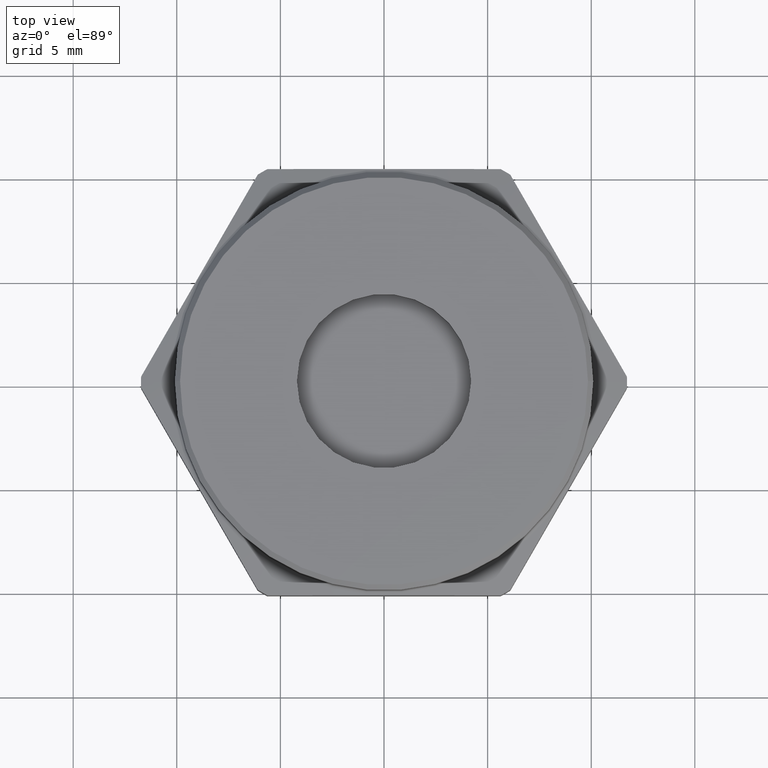
[diagram: clean part render]
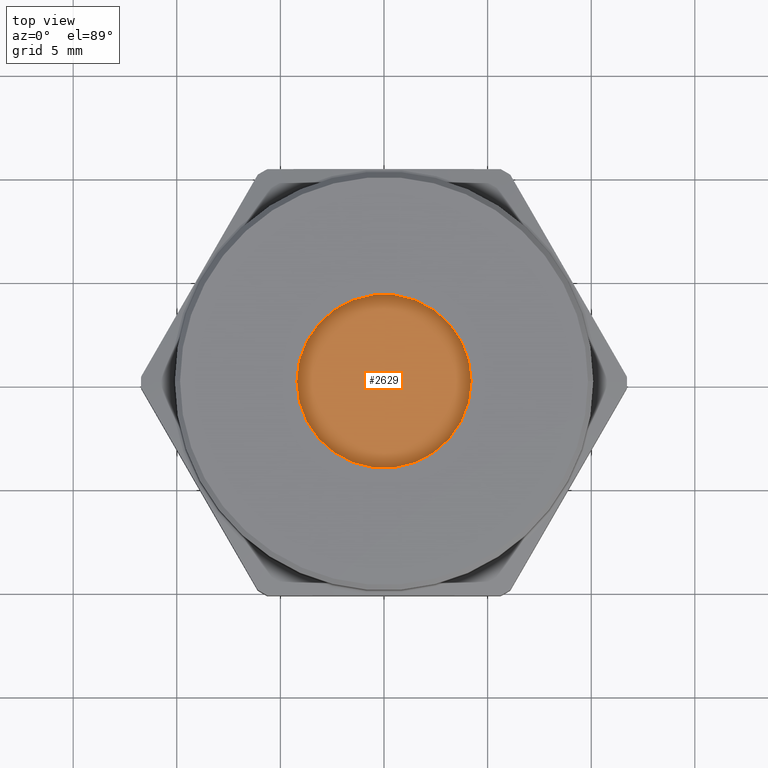
[diagram: same view with one face highlighted and labeled with its STEP entity id]
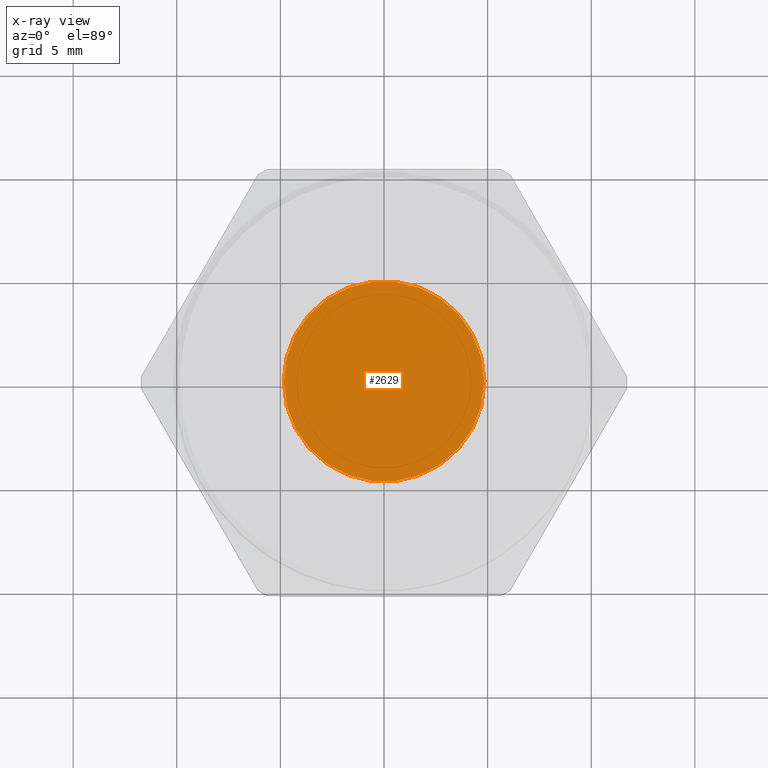
[diagram: x-ray of the same camera — body ghosted, the highlighted face saturated]
A machine part, top view. The second image highlights one B-rep face of the part: STEP entity #2629.
The next image is the same camera in x-ray: the body ghosted, the highlighted face saturated — about 0% of this face is hidden behind the body in this view.
In plain terms, the highlighted planar face has unit normal (0, 0, -1).
Its self-contained STEP definition (entity closure, byte-faithful):
#84 = CARTESIAN_POINT ( 'NONE',  ( 0.0000000000000000000, 0.0000000000000000000, 0.2100000000000000200 ) ) ;
#85 = DIRECTION ( 'NONE',  ( 0.0000000000000000000, 0.0000000000000000000, -1.000000000000000000 ) ) ;
#86 = DIRECTION ( 'NONE',  ( -1.000000000000000000, 0.0000000000000000000, 0.0000000000000000000 ) ) ;
#92 = CARTESIAN_POINT ( 'NONE',  ( 0.0000000000000000000, 0.0000000000000000000, 0.2100000000000000200 ) ) ;
#93 = DIRECTION ( 'NONE',  ( 0.0000000000000000000, 0.0000000000000000000, -1.000000000000000000 ) ) ;
#94 = DIRECTION ( 'NONE',  ( -1.000000000000000000, 0.0000000000000000000, 0.0000000000000000000 ) ) ;
#283 = EDGE_LOOP ( 'NONE', ( #541, #542 ) ) ;
#541 = ORIENTED_EDGE ( 'NONE', *, *, #878, .F. ) ;
#542 = ORIENTED_EDGE ( 'NONE', *, *, #875, .F. ) ;
#599 = CIRCLE ( 'NONE', #896, 0.1905000000000000000 ) ;
#605 = CIRCLE ( 'NONE', #898, 0.1905000000000000000 ) ;
#802 = FACE_OUTER_BOUND ( 'NONE', #283, .T. ) ;
#875 = EDGE_CURVE ( 'NONE', #1279, #1296, #599, .T. ) ;
#878 = EDGE_CURVE ( 'NONE', #1296, #1279, #605, .T. ) ;
#896 = AXIS2_PLACEMENT_3D ( 'NONE', #84, #85, #86 ) ;
#898 = AXIS2_PLACEMENT_3D ( 'NONE', #92, #93, #94 ) ;
#1003 = AXIS2_PLACEMENT_3D ( 'NONE', #2496, #2500, #2501 ) ;
#1279 = VERTEX_POINT ( 'NONE', #1575 ) ;
#1296 = VERTEX_POINT ( 'NONE', #1584 ) ;
#1575 = CARTESIAN_POINT ( 'NONE',  ( -0.1905000000000000000, 2.332952152375707600E-017, 0.2100000000000000200 ) ) ;
#1584 = CARTESIAN_POINT ( 'NONE',  ( 0.1905000000000000000, 0.0000000000000000000, 0.2100000000000000200 ) ) ;
#2494 = PLANE ( 'NONE',  #1003 ) ;
#2496 = CARTESIAN_POINT ( 'NONE',  ( 0.0000000000000000000, 0.0000000000000000000, 0.2100000000000000200 ) ) ;
#2500 = DIRECTION ( 'NONE',  ( 0.0000000000000000000, 0.0000000000000000000, -1.000000000000000000 ) ) ;
#2501 = DIRECTION ( 'NONE',  ( -1.000000000000000000, 0.0000000000000000000, -0.0000000000000000000 ) ) ;
#2629 = ADVANCED_FACE ( 'NONE', ( #802 ), #2494, .F. ) ;